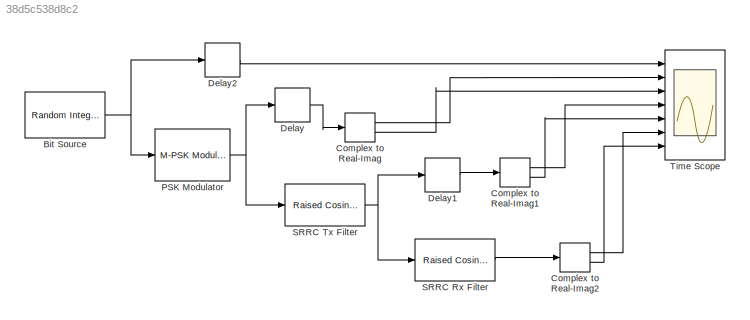
MODEL slx_38d5c538d8c2
KIND model
CONFIG AbsTol = auto
CONFIG EnableMultiTasking = off
CONFIG FixedStep = auto
CONFIG MaxStep = auto
CONFIG MinStep = auto
CONFIG RelTol = 1e-3
CONFIG SampleTimeConstraint = Unconstrained
CONFIG Solver = FixedStepAuto
CONFIG SolverName = FixedStepAuto
CONFIG StartTime = 0
CONFIG StopTime = 100e-3
WORKSPACE source: MAT-file member
WORKSPACE M = 4
BLOCK [Reference] Bit Source  REF=commrandsrc3/Random Integer
Generator
  Ports = [0, 1]
  SourceBlock = commrandsrc3/Random Integer\nGenerator
  SourceProductBaseCode = CM
  SourceProductName = Communications System Toolbox
  SourceType = Random Integer Generator
BLOCK [ComplexToRealImag] Complex to Real-Imag
  Ports = [1, 2]
BLOCK [ComplexToRealImag] Complex to Real-Imag1
  Ports = [1, 2]
BLOCK [ComplexToRealImag] Complex to Real-Imag2
  Ports = [1, 2]
BLOCK [Delay] Delay
  DelayLength = 2*(span/2)
  InitialCondition = 0
  InputPortMap = u0
  Ports = [1, 1]
BLOCK [Delay] Delay1
  DelayLength = span*osf/2
  InitialCondition = 0
  InputPortMap = u0
  Ports = [1, 1]
BLOCK [Delay] Delay2
  DelayLength = 2*(span/2)
  InitialCondition = 0
  InputPortMap = u0
  Ports = [1, 1]
BLOCK [Reference] PSK Modulator  REF=commdigbbndpm3/M-PSK
Modulator
Baseband
  Ports = [1, 1]
  SourceBlock = commdigbbndpm3/M-PSK\nModulator\nBaseband
  SourceProductBaseCode = CM
  SourceProductName = Communications System Toolbox
  SourceType = M-PSK Modulator Baseband
BLOCK [Reference] SRRC Rx Filter  REF=commfilt2/Raised Cosine
Receive Filter
  Ports = [1, 1]
  SourceBlock = commfilt2/Raised Cosine\nReceive Filter
  SourceProductBaseCode = CM
  SourceProductName = Communications System Toolbox
  SourceType = Raised Cosine Receive Filter
BLOCK [Reference] SRRC Tx Filter  REF=commfilt2/Raised Cosine
Transmit Filter
  Ports = [1, 1]
  SourceBlock = commfilt2/Raised Cosine\nTransmit Filter
  SourceProductBaseCode = CM
  SourceProductName = Communications System Toolbox
  SourceType = Raised Cosine Transmit Filter
BLOCK [Scope] Time Scope
  DefaultConfigurationName = spbscopes.TimeScopeBlockCfg
  NumInputPorts = 7
  Ports = [7]
  ScopeSpecificationString = spbscopes.TimeScopeBlockCfg('CurrentConfiguration', extmgr.ConfigurationSet(extmgr.Configuration('Core','General UI',true),extmgr.Configuration('Core','Source UI',true),extmgr.Configuration('Sources','WiredSimulink',true),extmgr.Configuration('Visuals','Time Domain',true,'DisplayPropertyDefaults',struct('MinYLimReal','-1.17712','MaxYLimReal','1.20664','YLabelReal','Amplitude','MinYLimMag','0.00000...<+2220ch>
  UserDataPersistent = on
NET Bit Source:1 -> Delay2:1, PSK Modulator:1
LINE Complex to Real-Imag1:1 -> Time Scope:4
LINE Complex to Real-Imag1:2 -> Time Scope:5
LINE Complex to Real-Imag2:1 -> Time Scope:6
LINE Complex to Real-Imag2:2 -> Time Scope:7
LINE Complex to Real-Imag:1 -> Time Scope:2
LINE Complex to Real-Imag:2 -> Time Scope:3
LINE Delay1:1 -> Complex to Real-Imag1:1
LINE Delay2:1 -> Time Scope:1
LINE Delay:1 -> Complex to Real-Imag:1
NET PSK Modulator:1 -> Delay:1, SRRC Tx Filter:1
LINE SRRC Rx Filter:1 -> Complex to Real-Imag2:1
NET SRRC Tx Filter:1 -> Delay1:1, SRRC Rx Filter:1
note: NET lines group one-source signal fan-out (src -> all destinations, sorted); 1:1 wires keep LINE
